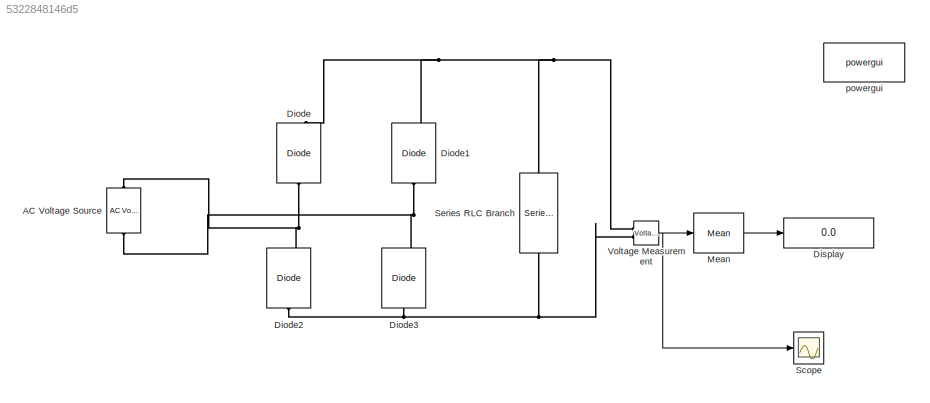
MODEL slx_5322848146d5
KIND model
CONFIG AbsTol = auto
CONFIG EnableMultiTasking = off
CONFIG FixedStep = auto
CONFIG MaxStep = 1e-6
CONFIG MinStep = auto
CONFIG RelTol = 1e-3
CONFIG SampleTimeConstraint = Unconstrained
CONFIG SolverName = VariableStepAuto
CONFIG StartTime = 0.0
CONFIG StopTime = 0.8
BLOCK [Reference] AC Voltage Source  REF=spsACVoltageSourceLib/AC Voltage Source
  Ports = [0, 0, 0, 0, 0, 1, 1]
  SourceBlock = spsACVoltageSourceLib/AC Voltage Source
  SourceProductBaseCode = PS
  SourceType = AC Voltage Source
BLOCK [Reference] Diode  REF=spsDiodeLib/Diode
  NameLocation = right
  Ports = [0, 1, 0, 0, 0, 1, 1]
  SourceBlock = spsDiodeLib/Diode
  SourceProductBaseCode = PS
  SourceType = Diode
BLOCK [Reference] Diode1  REF=spsDiodeLib/Diode
  NameLocation = right
  Ports = [0, 1, 0, 0, 0, 1, 1]
  SourceBlock = spsDiodeLib/Diode
  SourceProductBaseCode = PS
  SourceType = Diode
BLOCK [Reference] Diode2  REF=spsDiodeLib/Diode
  NameLocation = right
  Ports = [0, 1, 0, 0, 0, 1, 1]
  SourceBlock = spsDiodeLib/Diode
  SourceProductBaseCode = PS
  SourceType = Diode
BLOCK [Reference] Diode3  REF=spsDiodeLib/Diode
  NameLocation = right
  Ports = [0, 1, 0, 0, 0, 1, 1]
  SourceBlock = spsDiodeLib/Diode
  SourceProductBaseCode = PS
  SourceType = Diode
BLOCK [Display] Display
  Decimation = 1
  Ports = [1]
BLOCK [Reference] Mean  REF=spsMeanLib/Mean
  Ports = [1, 1]
  SourceBlock = spsMeanLib/Mean
  SourceProductBaseCode = PS
  SourceType = Mean
BLOCK [Scope] Scope
  Floating = off
  NumInputPorts = 1
  Ports = [1]
  ScopeSpecificationString = Simulink.scopes.TimeScopeBlockCfg('CurrentConfiguration', extmgr.ConfigurationSet(extmgr.Configuration('Core','General UI',true),extmgr.Configuration('Core','Source UI',true),extmgr.Configuration('Sources','WiredSimulink',true),extmgr.Configuration('Visuals','Time Domain',true),extmgr.Configuration('Tools','Plot Navigation',true),extmgr.Configuration('Tools','Measurements',true)),'Version','2021a'...<+1ch>
BLOCK [Reference] Series RLC Branch  REF=spsSeriesRLCBranchLib/Series RLC Branch
  NameLocation = left
  Ports = [0, 0, 0, 0, 0, 1, 1]
  SourceBlock = spsSeriesRLCBranchLib/Series RLC Branch
  SourceProductBaseCode = PS
  SourceType = Series RLC Branch
BLOCK [Reference] Voltage Measurement  REF=spsVoltageMeasurementLib/Voltage Measurement
  Ports = [0, 1, 0, 0, 0, 2]
  SourceBlock = spsVoltageMeasurementLib/Voltage Measurement
  SourceProductBaseCode = PS
  SourceType = Voltage Measurement
  UserDataPersistent = on
BLOCK [Reference] powergui  REF=spspowerguiLib/powergui
  Ports = []
  Priority = 1
  SourceBlock = spspowerguiLib/powergui
  SourceProductBaseCode = PS
  SourceType = PSB option menu block
LINE Mean:1 -> Display:1
NET Voltage Measurement:1 -> Mean:1, Scope:1
PNET net1: AC Voltage Source:LConn1 -- Diode1:LConn1 -- Diode3:RConn1
PNET net2: AC Voltage Source:RConn1 -- Diode2:RConn1 -- Diode:LConn1
PNET net3: Diode1:RConn1 -- Diode:RConn1 -- Series RLC Branch:LConn1 -- Voltage Measurement:LConn1
PNET net4: Diode2:LConn1 -- Diode3:LConn1 -- Series RLC Branch:RConn1 -- Voltage Measurement:LConn2
note: NET lines group one-source signal fan-out (src -> all destinations, sorted); 1:1 wires keep LINE; PNET lines group multi-terminal physical nets as a canonical sorted terminal list (undirected conserving connections); 2-terminal nets keep the pairwise PLINE form
